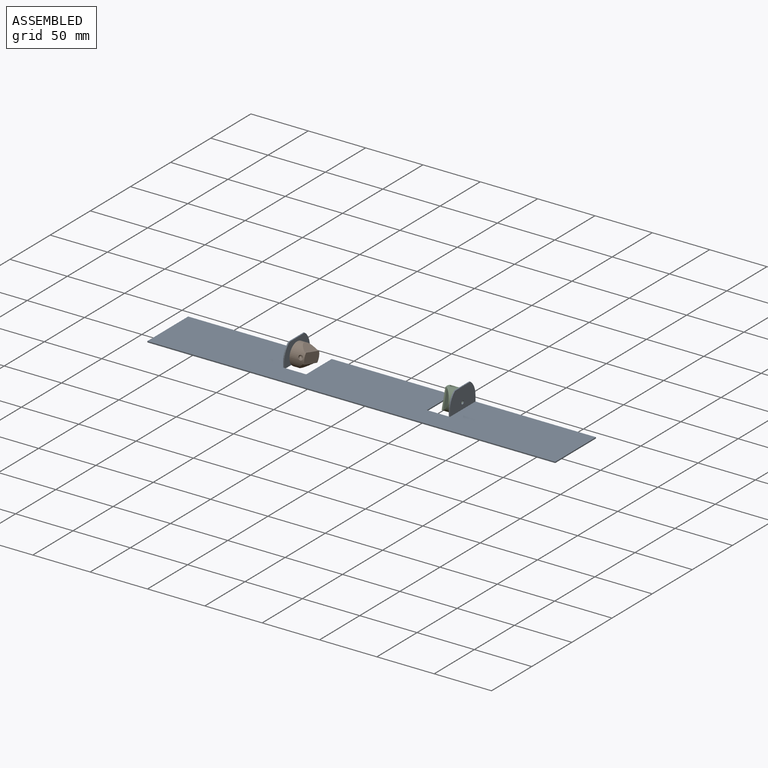
[diagram: assembled view]
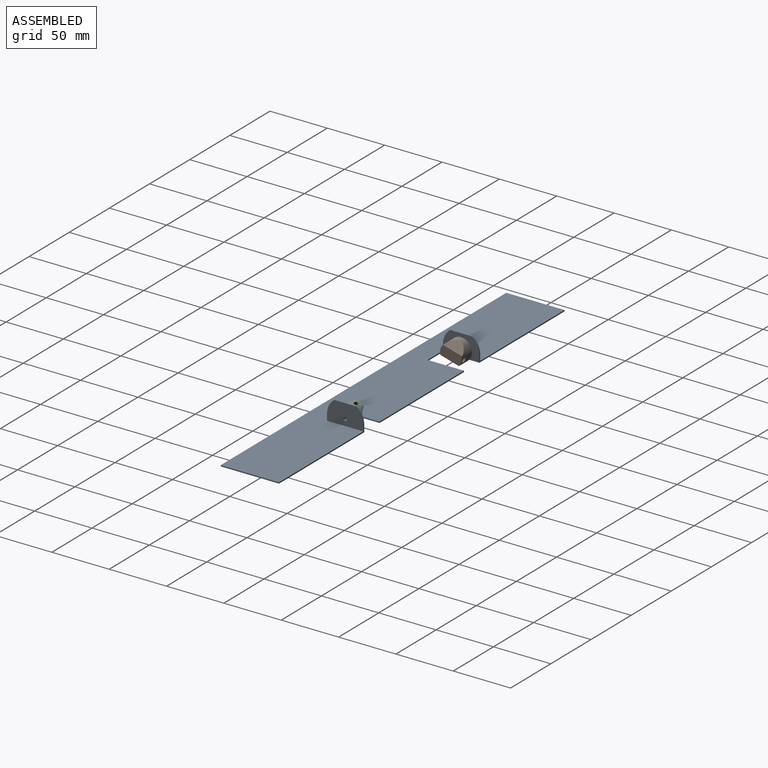
[diagram: assembled view, second angle]
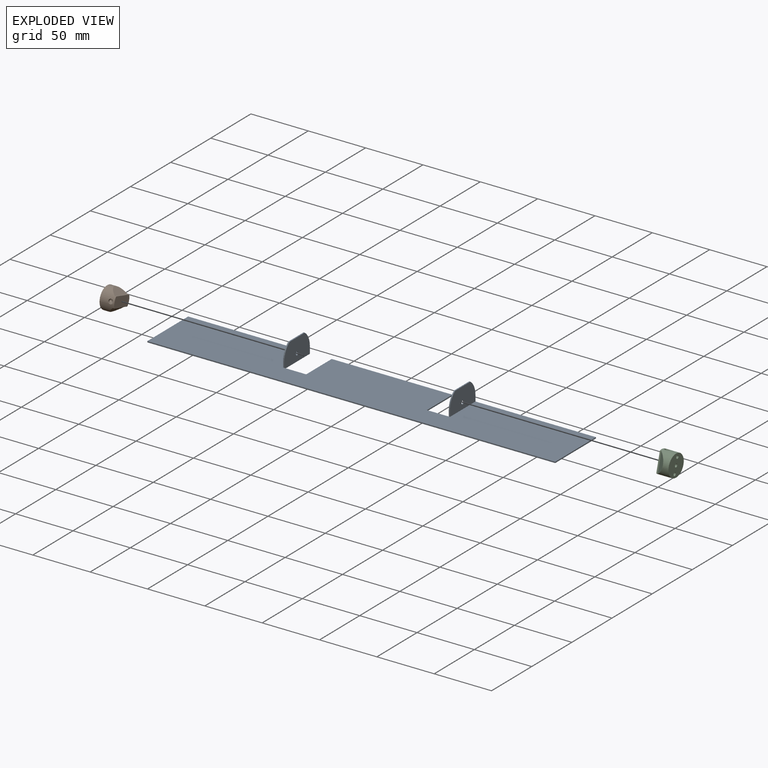
[diagram: exploded view]
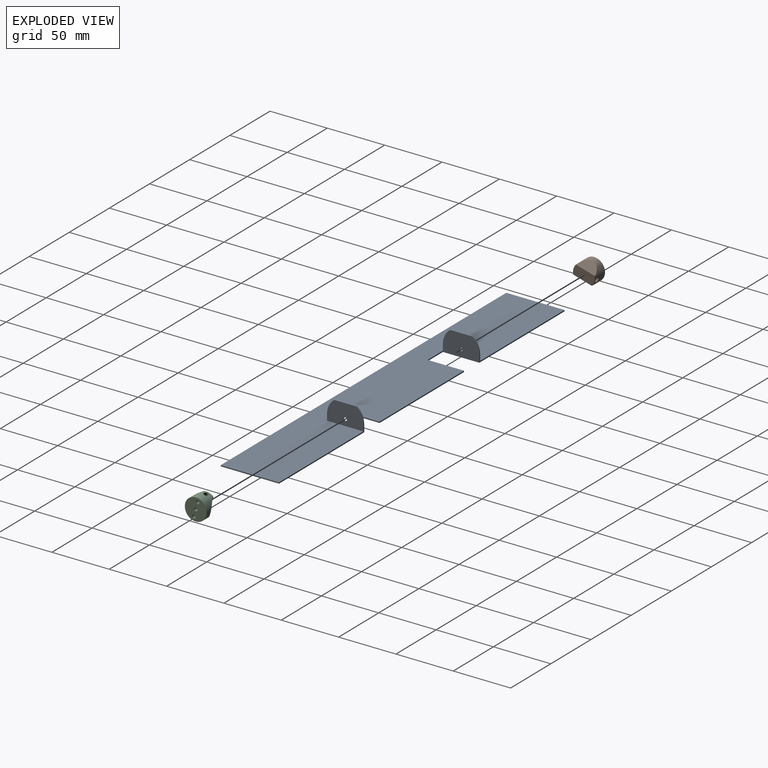
[diagram: exploded view, second angle]
ASSEMBLY  parts=3 mates=2
PART A: 26 faces, bbox 355.6x50.8x19.1 mm
  f0: plane 355.6x50.8mm, normal (0,0,1), area 16790.3mm2, adj f1,f2,f4,f5,f6,f7,f8,f9
  f1: plane 106.12x6.35mm, normal (0,1,0), area 113.2mm2, adj f0,f3,f6,f11,f23,f25
  f2: plane 105.27x1.02mm, normal (0,1,0), area 107mm2, adj f0,f3,f8,f13
  f3: plane 355.6x50.8mm, normal (0,0,-1), area 16854.8mm2, adj f1,f2,f4,f5,f6,f7,f8,f9
  f4: plane 50.8x1.02mm, normal (1,0,0), area 51.6mm2, adj f0,f3,f5,f7
  f5: plane 106.11x6.35mm, normal (0,1,0), area 113.2mm2, adj f0,f3,f4,f10,f15,f19
  f6: plane 50.8x1.02mm, normal (-1,0,0), area 51.6mm2, adj f0,f1,f3,f7
  f7: plane 355.6x1.02mm, normal (0,-1,0), area 361.3mm2, adj f0,f3,f4,f6
  f8: plane 31.75x1.02mm, normal (1,0,0), area 32.3mm2, adj f0,f2,f3,f9
  f9: plane 19.05x1.02mm, normal (0,1,0), area 19.4mm2, adj f0,f3,f8,f10
  f10: plane 31.75x19.05mm, normal (-1,0,0), area 549.2mm2, adj f3,f5,f9,f14,f15,f16,f17,f18
  f11: plane 31.75x19.05mm, normal (1,0,0), area 549.2mm2, adj f1,f3,f12,f20,f21,f22,f23,f24
  f12: plane 19.05x1.02mm, normal (0,1,0), area 19.4mm2, adj f0,f3,f11,f13
  f13: plane 31.75x1.02mm, normal (-1,0,0), area 32.3mm2, adj f0,f2,f3,f12
  f14: plane 19.05x1.02mm, normal (0,0,1), area 19.4mm2, adj f10,f15,f17,f19
  f15: cylinder r=15.88mm len=12.7mm, axis (-1,0,0), area 15mm2, adj f5,f10,f14,f19
  f16: plane 5.33x1.02mm, normal (0,-1,0), area 5.4mm2, adj f0,f10,f17,f19
  f17: cylinder r=15.88mm len=12.7mm, axis (-1,0,0), area 15mm2, adj f10,f14,f16,f19
  f18: cylinder r=1.5mm len=3mm, axis (-1,0,0), area 9.6mm2, adj f10,f19
  f19: plane 31.75x18.03mm, normal (1,0,0), area 516.9mm2, adj f0,f5,f14,f15,f16,f17,f18
  f20: plane 19.05x1.02mm, normal (0,0,1), area 19.4mm2, adj f11,f21,f23,f25
  f21: cylinder r=15.88mm len=12.7mm, axis (1,0,0), area 15mm2, adj f11,f20,f22,f25
  f22: plane 5.33x1.02mm, normal (0,-1,0), area 5.4mm2, adj f0,f11,f21,f25
  f23: cylinder r=15.88mm len=12.7mm, axis (1,0,0), area 15mm2, adj f1,f11,f20,f25
  f24: cylinder r=1.5mm len=3mm, axis (1,0,0), area 9.6mm2, adj f11,f25
  f25: plane 31.75x18.03mm, normal (-1,0,0), area 516.9mm2, adj f0,f1,f20,f21,f22,f23,f24
PART B: 11 faces, bbox 19.1x19.1x12.7 mm
  f0: plane 16.85x1.27mm, normal (1,0,0), area 21.4mm2, adj f3,f5,f10
  f1: plane 16.85x1.27mm, normal (-1,0,0), area 21.4mm2, adj f3,f5,f9
  f2: cylinder r=2.03mm len=19.05mm, axis (0,1,0), area 219mm2, adj f3,f6,f7,f8
  f3: cylinder r=9.53mm len=19.05mm, axis (0,0,-1), area 509.9mm2, adj f0,f1,f2,f4,f5,f9,f10
  f4: plane 19.05x19.05mm, normal (0,0,-1), area 265.2mm2, adj f3,f6,f7,f8
  f5: plane 19.05x8.89mm, normal (0,0,1), area 163mm2, adj f0,f1,f3
  f6: cylinder r=1.45mm len=7.98mm, axis (0,0,-1), area 69.8mm2, adj f2,f4
  f7: cylinder r=1.45mm len=7.98mm, axis (0,0,-1), area 69.8mm2, adj f2,f4
  f8: cylinder r=1.45mm len=7.98mm, axis (0,0,-1), area 69.8mm2, adj f2,f4
  f9: plane 16.85x6.35mm, normal (-0.78,0,0.62), area 97.7mm2, adj f1,f3
  f10: plane 16.85x6.35mm, normal (0.78,0,0.62), area 97.7mm2, adj f0,f3
PART C: same geometry as B
PLACE A t=(-0.71,1.58,2.99)mm fixed
PLACE B rot(axis=(0.7,0.1,0.7),168.9deg) t=(-72.38,11.11,8.83)mm
PLACE C rot(axis=(-0.62,-0.47,0.62),129.2deg) t=(70.99,11.11,8.83)mm
MATE revolute C.f3 <-> A.f15  axis (1,0,0) through (70.99,11.11,8.83)mm
MATE revolute B.f3 <-> A.f15  axis (-1,0,0) through (-72.38,11.11,8.83)mm
